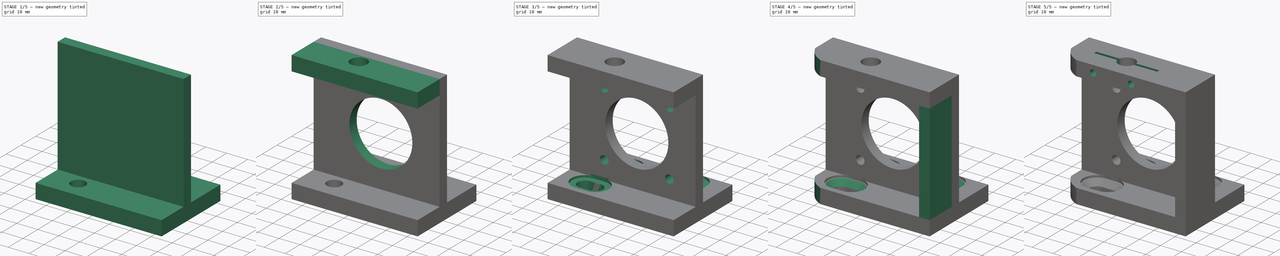
[diagram: build sequence overview — one tinted view per stage of 5, left to right]
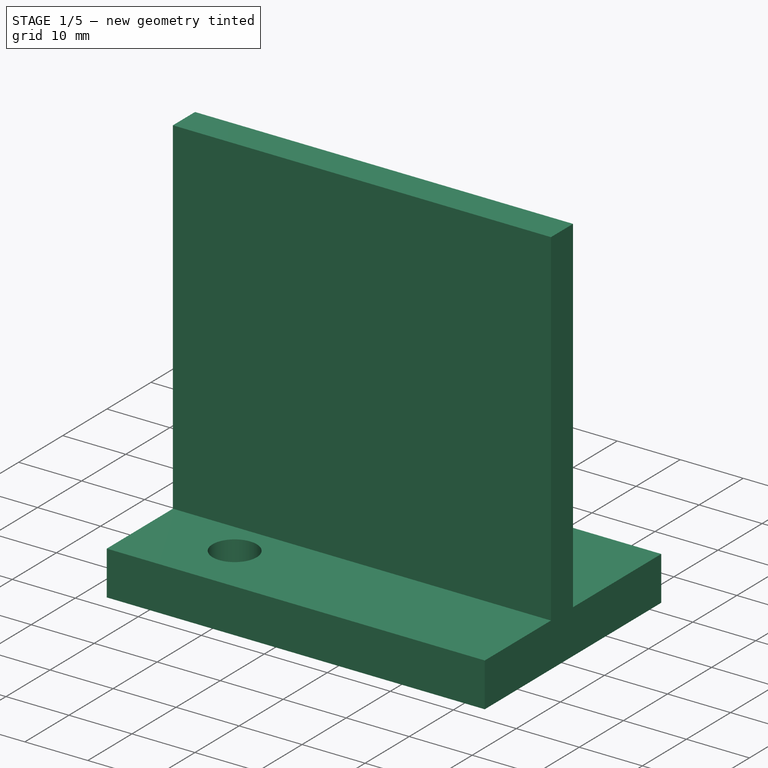
[diagram: stage 1 of 5 — iso view after this stage's code; geometry added in this stage tinted green]
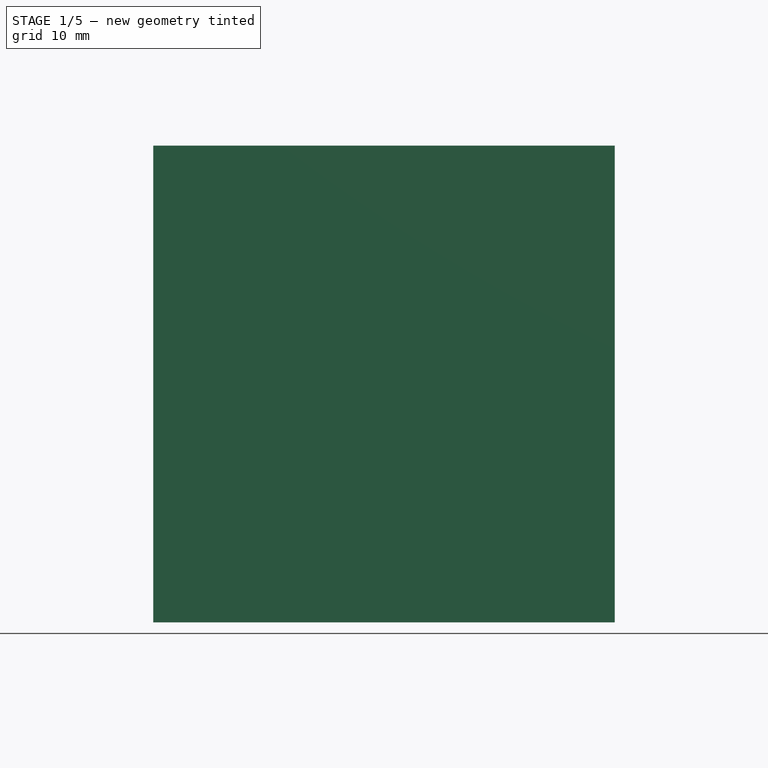
[diagram: stage 1 of 5 — front view after this stage's code; geometry added in this stage tinted green]
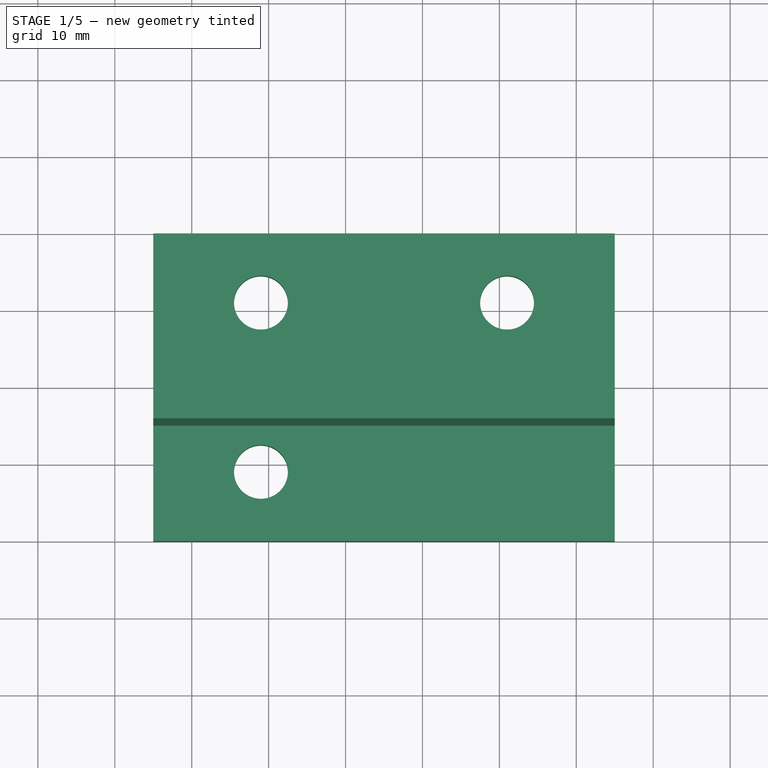
[diagram: stage 1 of 5 — top view after this stage's code; geometry added in this stage tinted green]
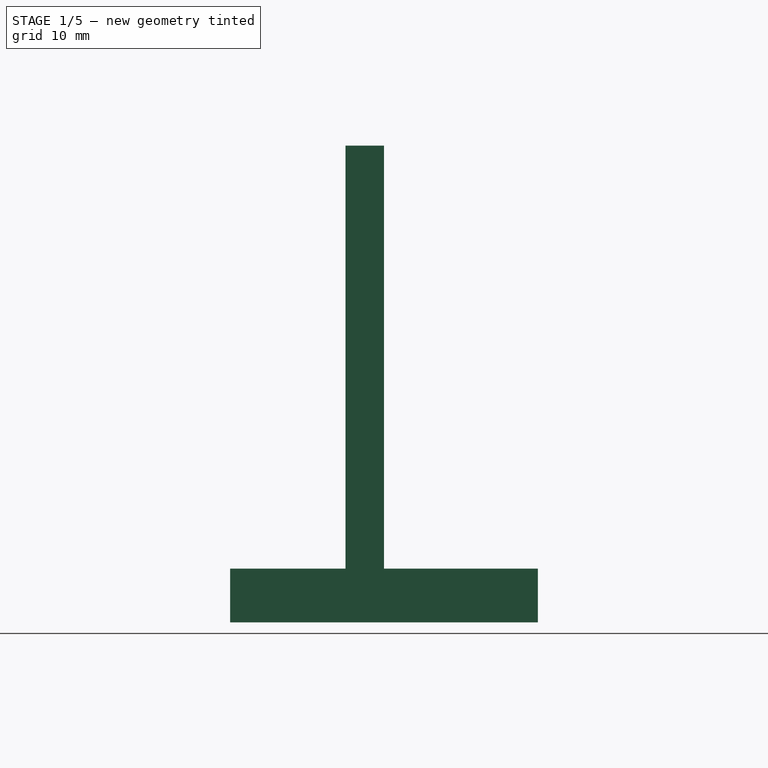
[diagram: stage 1 of 5 — right view after this stage's code; geometry added in this stage tinted green]
FCSTD DOCUMENT  (FreeCAD 0.17R10495 (Git))
Label: motor_a_2
License: All rights reserved
LicenseURL: http://en.wikipedia.org/wiki/All_rights_reserved
objects: Sketcher::SketchObject×14, PartDesign::Pocket×10, PartDesign::Pad×4, PartDesign::Chamfer×1, PartDesign::Body×1
note: 44 computed .brp shape members not serialized (recipe doc carries the construction recipe); baked Part::Feature solids carry a one-line shape summary decoded from their .brp

FEATURE [Sketcher::SketchObject] Sketch
  MapMode = 5
  Support = -> [XY_Plane]
  sketch-geometry (4):
    g0: LineSegment StartX=-25 StartY=20 StartZ=0 EndX=35 EndY=20 EndZ=0
    g1: LineSegment StartX=35 StartY=20 StartZ=0 EndX=35 EndY=-20 EndZ=0
    g2: LineSegment StartX=35 StartY=-20 StartZ=0 EndX=-25 EndY=-20 EndZ=0
    g3: LineSegment StartX=-25 StartY=20 StartZ=0 EndX=-25 EndY=-20 EndZ=0
  constraints (12):
    c: Coincident(g0,g1)
    c: Coincident(g1,g2)
    c: Horizontal(g0)
    c: Horizontal(g2)
    c: Vertical(g1)
    c: DistanceY(g1,g1) = 40
    c: DistanceX(g0,g0) = 60
    c: Coincident(g3,g0)
    c: Coincident(g3,g2)
    c: Vertical(g3)
    c: Symmetric(g2,g0,g-1)
    c: DistanceX(g0,g-1) = 25
FEATURE [PartDesign::Pad] Pad
  Length = 7
  Length2 = 100
  Profile = -> Sketch
  Type = 0
FEATURE [Sketcher::SketchObject] Sketch001
  MapMode = 5
  Support = -> [XY_Plane]
  sketch-geometry (3):
    g0: Circle CenterX=-11 CenterY=11 CenterZ=0 NormalX=0 NormalY=0 NormalZ=1 Radius=3.5
    g1: Circle CenterX=-11 CenterY=-11 CenterZ=0 NormalX=0 NormalY=0 NormalZ=1 Radius=3.5
    g2: Circle CenterX=21 CenterY=11 CenterZ=0 NormalX=0 NormalY=0 NormalZ=1 Radius=3.5
  constraints (7):
    c: Radius(g2) = 3.5
    c: Equal(g2,g0)
    c: Equal(g2,g1)
    c: Symmetric(g0,g1,g-1)
    c: DistanceX(g0,g-1) = 11
    c: DistanceY(g1,g-1) = 11
    c: DistanceX(g-1,g2) = 21
FEATURE [PartDesign::Pocket] Pocket
  BaseFeature = -> Pad
  Length = 5
  Midplane = true
  Profile = -> Sketch001
  Type = 1
FEATURE [Sketcher::SketchObject] Sketch002
  ExternalGeometry = -> [Pocket]
  MapMode = 5
  Placement = pos=(0,0,7) rot=(0,0,1;0rad)
  Support = -> [Pocket]
  sketch-geometry (4):
    g0: LineSegment StartX=-25 StartY=0 StartZ=0 EndX=35 EndY=0 EndZ=0
    g1: LineSegment StartX=35 StartY=0 StartZ=0 EndX=35 EndY=-5 EndZ=0
    g2: LineSegment StartX=35 StartY=-5 StartZ=0 EndX=-25 EndY=-5 EndZ=0
    g3: LineSegment StartX=-25 StartY=-5 StartZ=0 EndX=-25 EndY=0 EndZ=0
  constraints (12):
    c: Coincident(g0,g1)
    c: Coincident(g1,g2)
    c: Coincident(g2,g3)
    c: Coincident(g3,g0)
    c: Horizontal(g0)
    c: Horizontal(g2)
    c: Vertical(g1)
    c: Vertical(g3)
    c: Distance(g-3,g0) = 11
    c: PointOnObject(g0,g-4)
    c: PointOnObject(g0,g-5)
    c: DistanceY(g2,g0) = 5
FEATURE [PartDesign::Pad] Pad001
  BaseFeature = -> Pocket
  Length = 55
  Length2 = 100
  Profile = -> Sketch002
  Type = 0
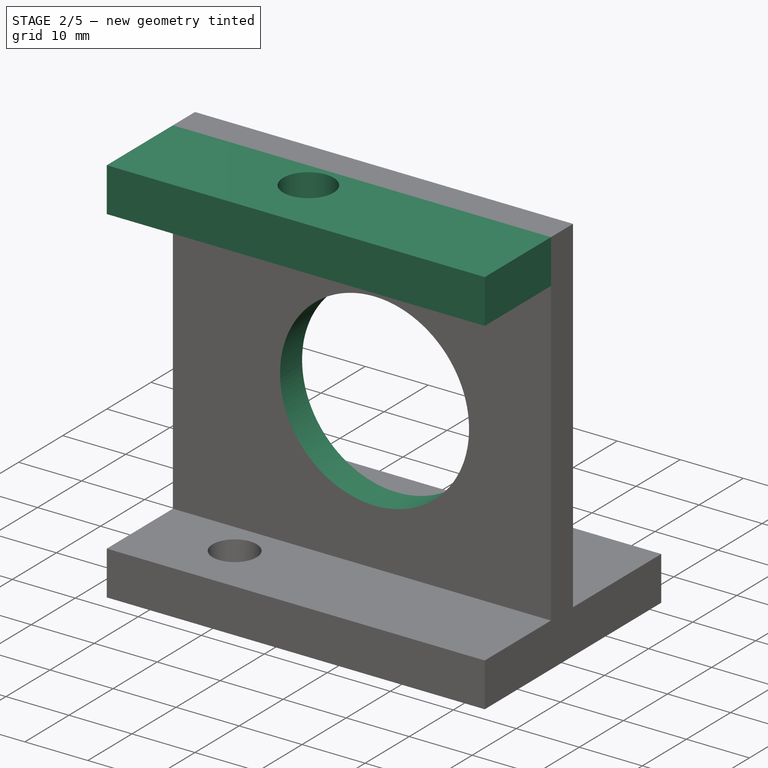
[diagram: stage 2 of 5 — iso view after this stage's code; geometry added in this stage tinted green]
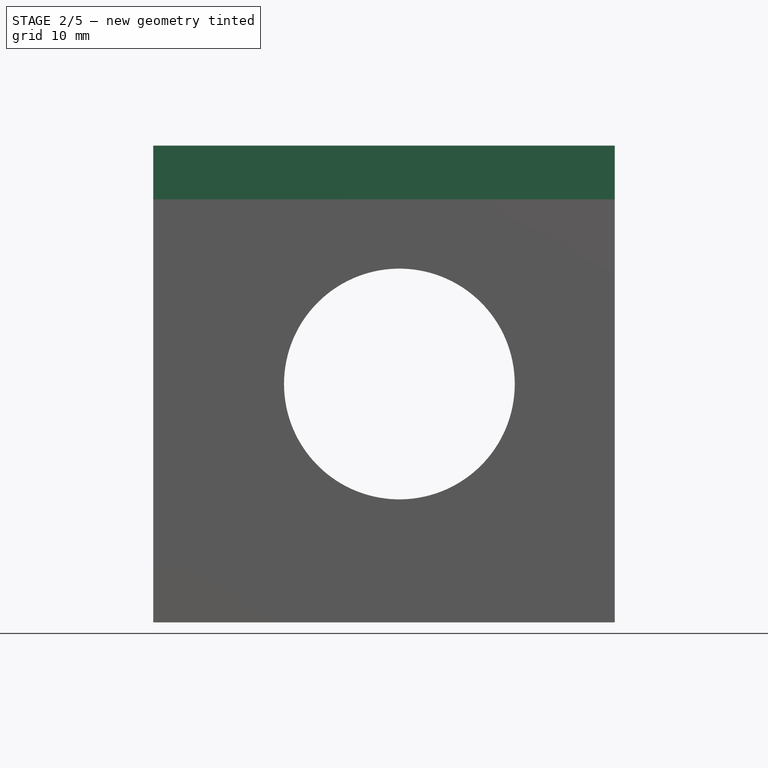
[diagram: stage 2 of 5 — front view after this stage's code; geometry added in this stage tinted green]
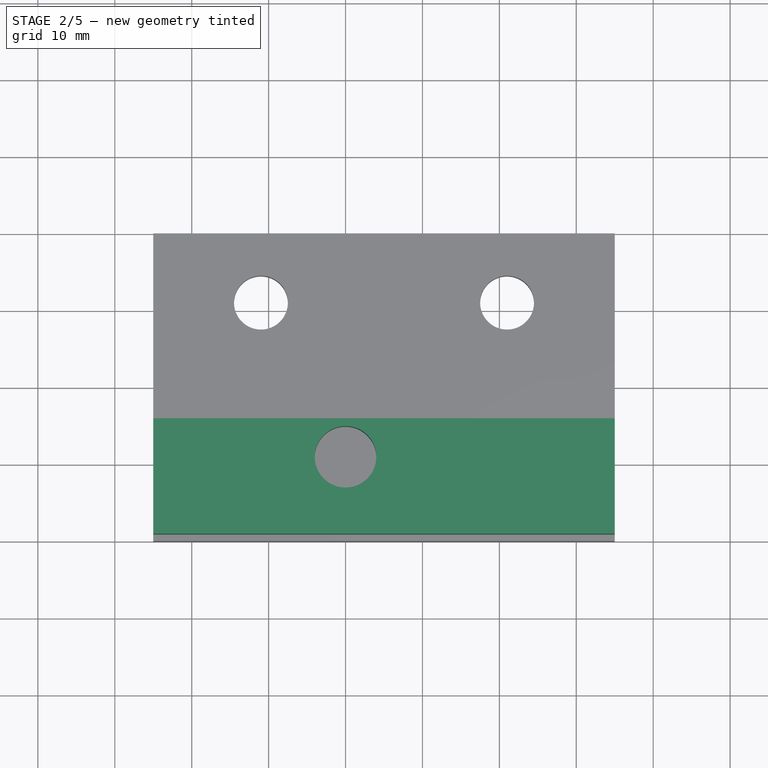
[diagram: stage 2 of 5 — top view after this stage's code; geometry added in this stage tinted green]
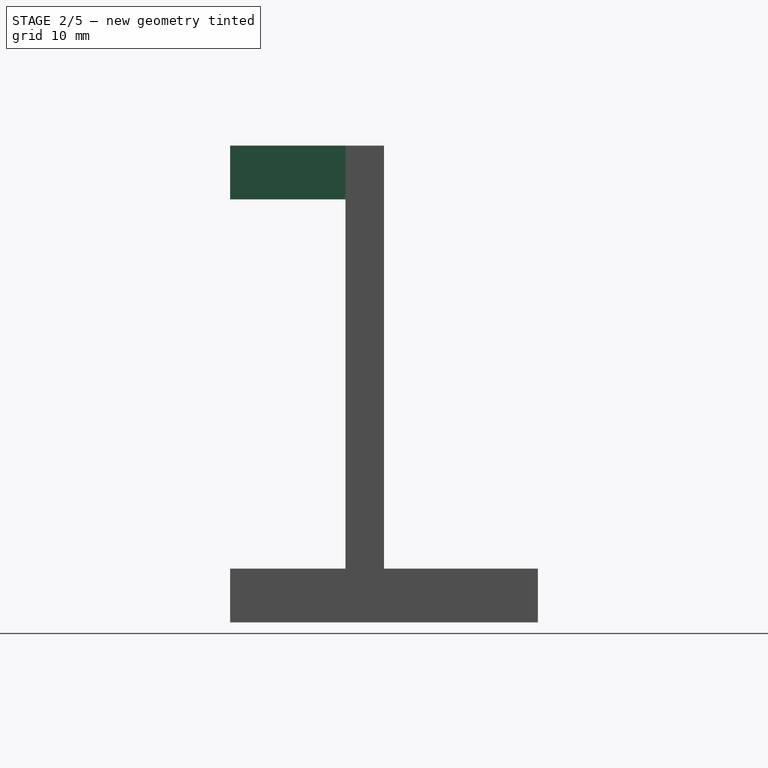
[diagram: stage 2 of 5 — right view after this stage's code; geometry added in this stage tinted green]
FEATURE [Sketcher::SketchObject] Sketch003
  ExternalGeometry = -> [Pad001]
  MapMode = 5
  Placement = pos=(0,-5,0) rot=(1,0,0;1.5708rad)
  Support = -> [Pad001]
  sketch-geometry (4):
    g0: LineSegment StartX=-25 StartY=62 StartZ=0 EndX=35 EndY=62 EndZ=0
    g1: LineSegment StartX=35 StartY=62 StartZ=0 EndX=35 EndY=55 EndZ=0
    g2: LineSegment StartX=35 StartY=55 StartZ=0 EndX=-25 EndY=55 EndZ=0
    g3: LineSegment StartX=-25 StartY=55 StartZ=0 EndX=-25 EndY=62 EndZ=0
  constraints (11):
    c: Coincident(g0,g1)
    c: Coincident(g1,g2)
    c: Coincident(g2,g3)
    c: Coincident(g3,g0)
    c: Horizontal(g0)
    c: Horizontal(g2)
    c: Vertical(g1)
    c: Vertical(g3)
    c: DistanceY(g3,g3) = 7
    c: Coincident(g0,g-3)
    c: Coincident(g0,g-3)
FEATURE [PartDesign::Pad] Pad002
  BaseFeature = -> Pad001
  Length = 15
  Length2 = 100
  Profile = -> Sketch003
  Type = 0
FEATURE [Sketcher::SketchObject] Sketch004
  ExternalGeometry = -> [Pad002]
  MapMode = 5
  Placement = pos=(0,0,62) rot=(0,0,1;0rad)
  Support = -> [Pad002]
  sketch-geometry (1):
    g0: Circle CenterX=0 CenterY=-10 CenterZ=0 NormalX=0 NormalY=0 NormalZ=1 Radius=4
  constraints (2):
    c: PointOnObject(g0,g-2)
    c: Radius(g0) = 4
FEATURE [PartDesign::Pocket] Pocket001
  BaseFeature = -> Pad002
  Length = 10
  Profile = -> Sketch004
  Type = 0
FEATURE [Sketcher::SketchObject] Sketch005
  ExternalGeometry = -> [Pocket001]
  MapMode = 5
  Placement = pos=(0,0,0) rot=(0,0.707107,0.707107;3.14159rad)
  Support = -> [Pocket001]
  sketch-geometry (1):
    g0: Circle CenterX=-7 CenterY=31 CenterZ=0 NormalX=0 NormalY=0 NormalZ=1 Radius=15
  constraints (3):
    c: Radius(g0) = 15
    c: DistanceX(g0,g-1) = 7
    c: DistanceY(g-3,g0) = 24
FEATURE [PartDesign::Pocket] Pocket002
  BaseFeature = -> Pocket001
  Length = 10
  Profile = -> Sketch005
  Type = 0
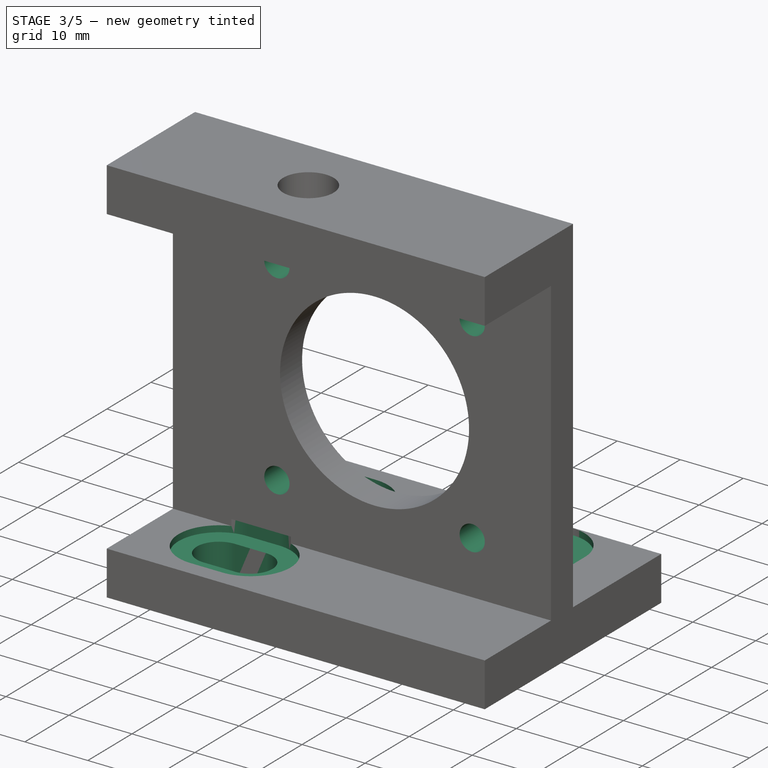
[diagram: stage 3 of 5 — iso view after this stage's code; geometry added in this stage tinted green]
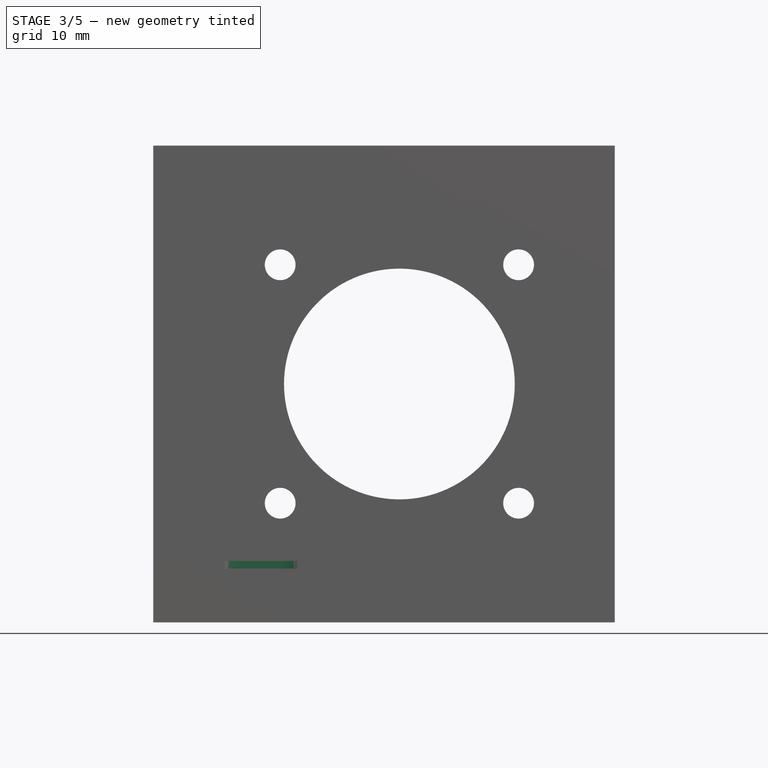
[diagram: stage 3 of 5 — front view after this stage's code; geometry added in this stage tinted green]
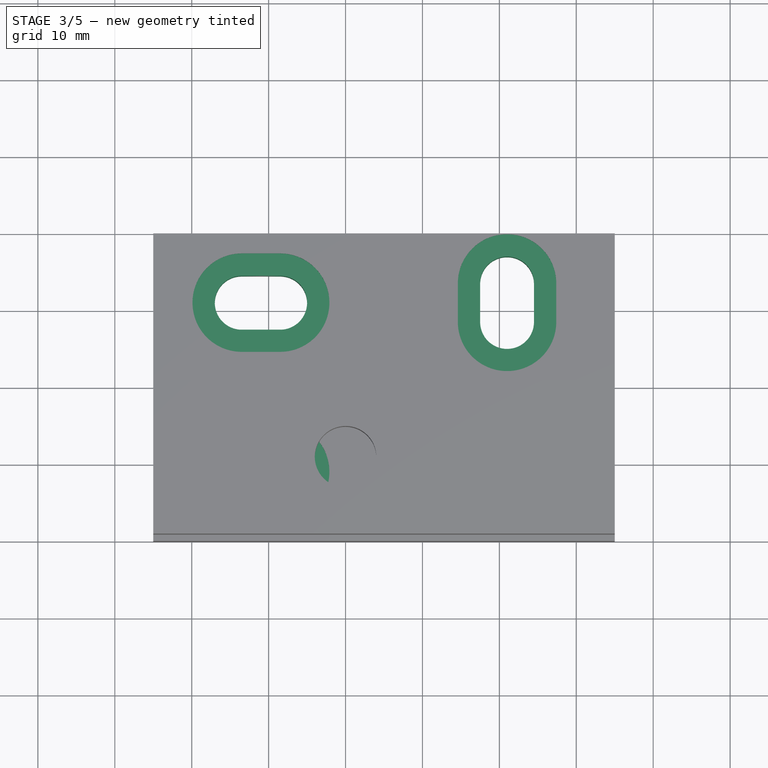
[diagram: stage 3 of 5 — top view after this stage's code; geometry added in this stage tinted green]
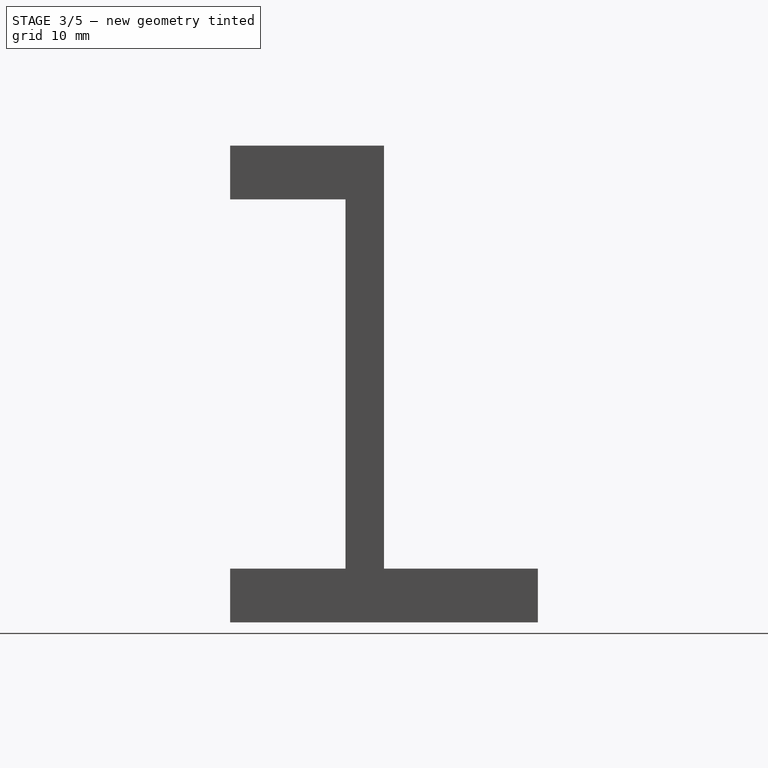
[diagram: stage 3 of 5 — right view after this stage's code; geometry added in this stage tinted green]
FEATURE [Sketcher::SketchObject] Sketch006
  ExternalGeometry = -> [Pocket002]
  MapMode = 5
  Placement = pos=(0,0,0) rot=(0,0.707107,0.707107;3.14159rad)
  Support = -> [Pocket002]
  sketch-geometry (4):
    g0: Circle CenterX=-22.5 CenterY=46.5 CenterZ=0 NormalX=0 NormalY=0 NormalZ=1 Radius=2
    g1: Circle CenterX=8.5 CenterY=46.5 CenterZ=0 NormalX=0 NormalY=0 NormalZ=1 Radius=2
    g2: Circle CenterX=-22.5 CenterY=15.5 CenterZ=0 NormalX=0 NormalY=0 NormalZ=1 Radius=2
    g3: Circle CenterX=8.5 CenterY=15.5 CenterZ=0 NormalX=0 NormalY=0 NormalZ=1 Radius=2
  constraints (12):
    c: DistanceY(g2,g0) = 31
    c: DistanceX(g0,g1) = 31
    c: DistanceY(g1,g0) = 0
    c: DistanceX(g0,g2) = 0
    c: Radius(g0) = 2
    c: Equal(g0,g2)
    c: Equal(g0,g1)
    c: DistanceX(g0,g-3) = 15.5
    c: DistanceY(g-3,g0) = 15.5
    c: DistanceX(g1,g3) = 0
    c: DistanceY(g3,g2) = 0
    c: Radius(g3) = 2
FEATURE [PartDesign::Pocket] Pocket003
  BaseFeature = -> Pocket002
  Length = 5
  Profile = -> Sketch006
  Type = 1
FEATURE [Sketcher::SketchObject] Sketch007
  ExternalGeometry = -> [Pocket003]
  MapMode = 5
  Placement = pos=(0,0,7) rot=(0,0,1;0rad)
  Support = -> [Pocket003]
  sketch-geometry (12):
    g0: ArcOfCircle CenterX=-13.5 CenterY=11 CenterZ=0 NormalX=0 NormalY=0 NormalZ=1 Radius=3.5 StartAngle=1.5708 EndAngle=4.71239
    g1: ArcOfCircle CenterX=-8.5 CenterY=11 CenterZ=0 NormalX=0 NormalY=0 NormalZ=1 Radius=3.5 StartAngle=4.71239 EndAngle=7.85398
    g2: LineSegment StartX=-13.5 StartY=7.5 StartZ=0 EndX=-8.5 EndY=7.5 EndZ=0
    g3: LineSegment StartX=-13.5 StartY=14.5 StartZ=0 EndX=-8.5 EndY=14.5 EndZ=0
    g4: ArcOfCircle CenterX=-13.5 CenterY=-11 CenterZ=0 NormalX=0 NormalY=0 NormalZ=1 Radius=3.5 StartAngle=1.5708 EndAngle=4.71239
    g5: ArcOfCircle CenterX=-8.5 CenterY=-11 CenterZ=0 NormalX=0 NormalY=0 NormalZ=1 Radius=3.5 StartAngle=4.71239 EndAngle=7.85398
    g6: LineSegment StartX=-13.5 StartY=-14.5 StartZ=0 EndX=-8.5 EndY=-14.5 EndZ=0
    g7: LineSegment StartX=-13.5 StartY=-7.5 StartZ=0 EndX=-8.5 EndY=-7.5 EndZ=0
    g8: ArcOfCircle CenterX=21 CenterY=13.5 CenterZ=0 NormalX=0 NormalY=0 NormalZ=1 Radius=3.5 StartAngle=0 EndAngle=3.14159
    g9: ArcOfCircle CenterX=21 CenterY=8.5 CenterZ=0 NormalX=0 NormalY=0 NormalZ=1 Radius=3.5 StartAngle=3.14159 EndAngle=6.28319
    g10: LineSegment StartX=17.5 StartY=13.5 StartZ=0 EndX=17.5 EndY=8.5 EndZ=0
    g11: LineSegment StartX=24.5 StartY=13.5 StartZ=0 EndX=24.5 EndY=8.5 EndZ=0
  constraints (28):
    c: Tangent(g0,g3) = 1.5708
    c: Tangent(g0,g2) = -1.5708
    c: Tangent(g2,g1) = -1.5708
    c: Tangent(g3,g1) = 1.5708
    c: Horizontal(g2)
    c: Equal(g0,g1)
    c: Tangent(g4,g7) = 1.5708
    c: Tangent(g4,g6) = -1.5708
    c: Tangent(g6,g5) = -1.5708
    c: Tangent(g7,g5) = 1.5708
    c: Horizontal(g6)
    c: Equal(g4,g5)
    c: Tangent(g8,g11) = 1.5708
    c: Tangent(g8,g10) = -1.5708
    c: Tangent(g10,g9) = -1.5708
    c: Tangent(g11,g9) = 1.5708
    c: Vertical(g10)
    c: Equal(g8,g9)
    c: Symmetric(g4,g5,g-5)
    c: Symmetric(g0,g1,g-3)
    c: Symmetric(g8,g9,g-4)
    c: Radius(g8) = 3.5
    c: Radius(g-4) = 3.5
    c: Equal(g8,g1)
    c: Equal(g8,g5)
    c: DistanceX(g7,g7) = 5
    c: DistanceX(g3,g3) = 5
    c: DistanceY(g11,g11) = 5
FEATURE [PartDesign::Pocket] Pocket004
  BaseFeature = -> Pocket003
  Length = 15
  Profile = -> Sketch007
  Type = 0
FEATURE [Sketcher::SketchObject] Sketch008
  ExternalGeometry = -> [Pocket004]
  MapMode = 5
  Placement = pos=(0,0,7) rot=(0,0,1;0rad)
  Support = -> [Pocket004]
  sketch-geometry (12):
    g0: ArcOfCircle CenterX=21 CenterY=13.5 CenterZ=0 NormalX=0 NormalY=0 NormalZ=1 Radius=6.4 StartAngle=0 EndAngle=3.14159
    g1: ArcOfCircle CenterX=21 CenterY=8.5 CenterZ=0 NormalX=0 NormalY=0 NormalZ=1 Radius=6.4 StartAngle=3.14159 EndAngle=6.28319
    g2: LineSegment StartX=14.6 StartY=13.5 StartZ=0 EndX=14.6 EndY=8.5 EndZ=0
    g3: LineSegment StartX=27.4 StartY=13.5 StartZ=0 EndX=27.4 EndY=8.5 EndZ=0
    g4: ArcOfCircle CenterX=-13.5 CenterY=11 CenterZ=0 NormalX=0 NormalY=0 NormalZ=1 Radius=6.4 StartAngle=1.5708 EndAngle=4.71239
    g5: ArcOfCircle CenterX=-8.5 CenterY=11 CenterZ=0 NormalX=0 NormalY=0 NormalZ=1 Radius=6.4 StartAngle=4.71239 EndAngle=7.85398
    g6: LineSegment StartX=-13.5 StartY=4.6 StartZ=0 EndX=-8.5 EndY=4.6 EndZ=0
    g7: LineSegment StartX=-13.5 StartY=17.4 StartZ=0 EndX=-8.5 EndY=17.4 EndZ=0
    g8: ArcOfCircle CenterX=-13.5 CenterY=-11 CenterZ=0 NormalX=0 NormalY=0 NormalZ=1 Radius=6.4 StartAngle=1.5708 EndAngle=4.71239
    g9: ArcOfCircle CenterX=-8.5 CenterY=-11 CenterZ=0 NormalX=0 NormalY=0 NormalZ=1 Radius=6.4 StartAngle=4.71239 EndAngle=7.85398
    g10: LineSegment StartX=-13.5 StartY=-17.4 StartZ=0 EndX=-8.5 EndY=-17.4 EndZ=0
    g11: LineSegment StartX=-13.5 StartY=-4.6 StartZ=0 EndX=-8.5 EndY=-4.6 EndZ=0
  constraints (27):
    c: Tangent(g0,g3) = 1.5708
    c: Tangent(g0,g2) = -1.5708
    c: Tangent(g2,g1) = -1.5708
    c: Tangent(g3,g1) = 1.5708
    c: Vertical(g2)
    c: Equal(g0,g1)
    c: Tangent(g4,g7) = 1.5708
    c: Tangent(g4,g6) = -1.5708
    c: Tangent(g6,g5) = -1.5708
    c: Tangent(g7,g5) = 1.5708
    c: Horizontal(g6)
    c: Equal(g4,g5)
    c: Tangent(g8,g11) = 1.5708
    c: Tangent(g8,g10) = -1.5708
    c: Tangent(g10,g9) = -1.5708
    c: Tangent(g11,g9) = 1.5708
    c: Horizontal(g10)
    c: Equal(g8,g9)
    c: Coincident(g0,g-5)
    c: Coincident(g5,g-4)
    c: Radius(g4) = 6.4
    c: Coincident(g4,g-3)
    c: Radius(g9) = 6.4
    c: Coincident(g-7,g9)
    c: Coincident(g-8,g8)
    c: Radius(g0) = 6.4
    c: Coincident(g1,g-6)
FEATURE [PartDesign::Pocket] Pocket005
  BaseFeature = -> Pocket004
  Length = 2
  Midplane = true
  Profile = -> Sketch008
  Type = 0
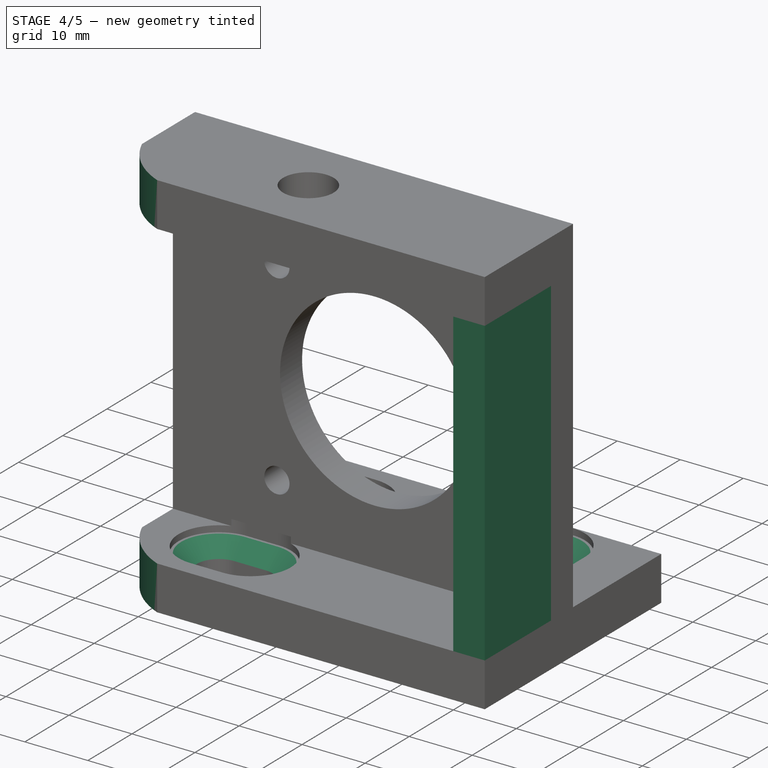
[diagram: stage 4 of 5 — iso view after this stage's code; geometry added in this stage tinted green]
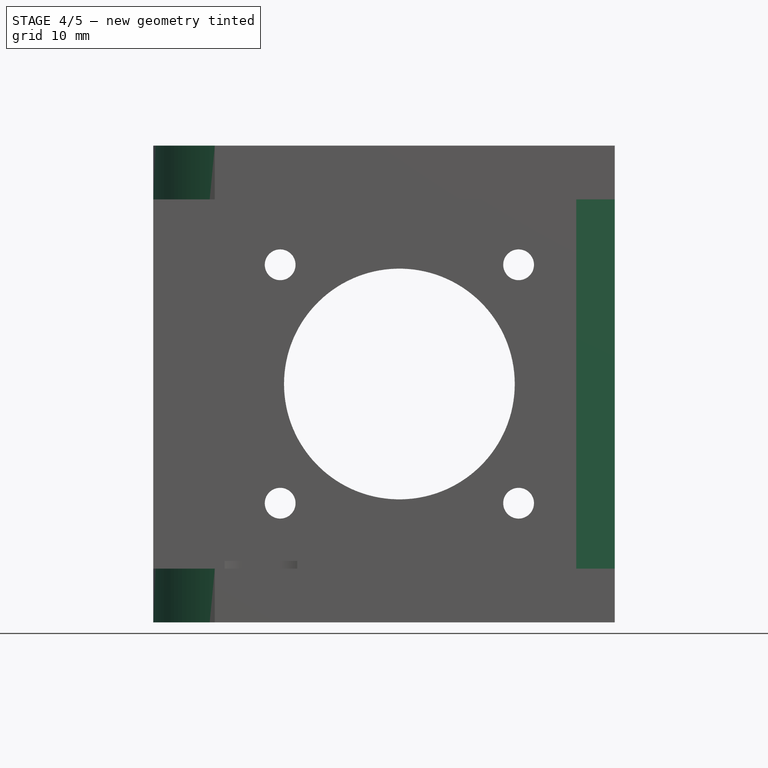
[diagram: stage 4 of 5 — front view after this stage's code; geometry added in this stage tinted green]
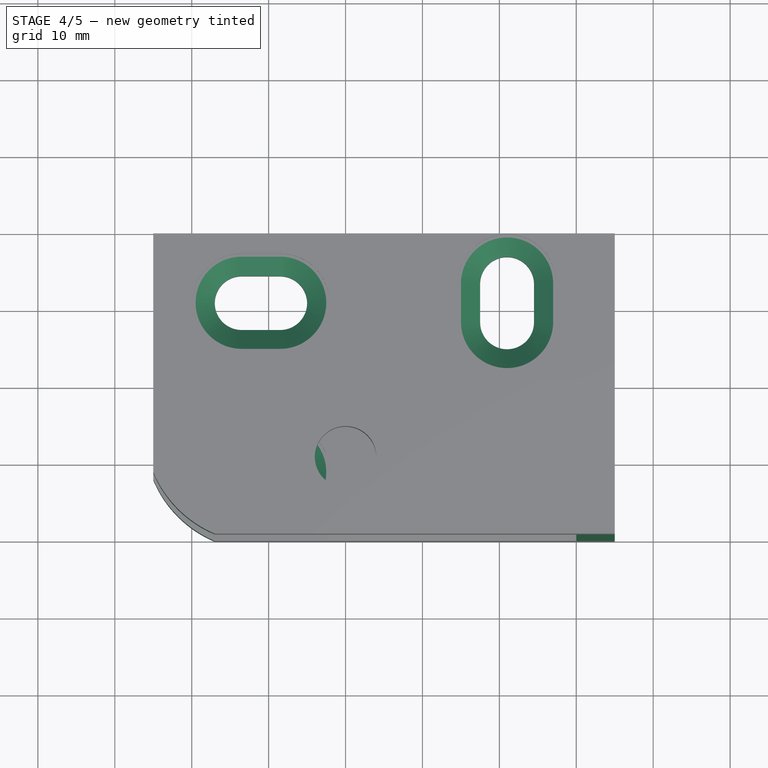
[diagram: stage 4 of 5 — top view after this stage's code; geometry added in this stage tinted green]
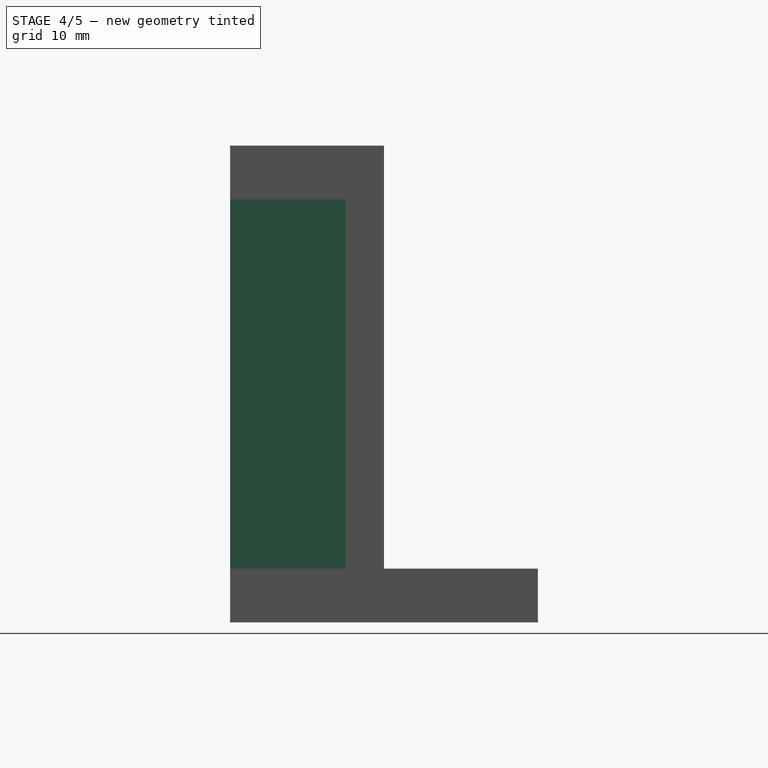
[diagram: stage 4 of 5 — right view after this stage's code; geometry added in this stage tinted green]
FEATURE [PartDesign::Chamfer] Chamfer
  Base = -> Pocket005 [Edge66,Edge84,Edge78]
  BaseFeature = -> Pocket005
  Size = 2.49
FEATURE [Sketcher::SketchObject] Sketch009
  ExternalGeometry = -> [Chamfer]
  MapMode = 5
  Placement = pos=(0,0,7) rot=(0,0,1;0rad)
  Support = -> [Chamfer]
  sketch-geometry (4):
    g0: LineSegment StartX=35 StartY=-5 StartZ=0 EndX=30 EndY=-5 EndZ=0
    g1: LineSegment StartX=30 StartY=-5 StartZ=0 EndX=30 EndY=-20 EndZ=0
    g2: LineSegment StartX=30 StartY=-20 StartZ=0 EndX=35 EndY=-20 EndZ=0
    g3: LineSegment StartX=35 StartY=-20 StartZ=0 EndX=35 EndY=-5 EndZ=0
  constraints (11):
    c: Coincident(g0,g1)
    c: Coincident(g1,g2)
    c: Coincident(g2,g3)
    c: Coincident(g3,g0)
    c: Horizontal(g0)
    c: Horizontal(g2)
    c: Vertical(g1)
    c: Vertical(g3)
    c: Coincident(g0,g-3)
    c: Coincident(g2,g-3)
    c: DistanceX(g2,g2) = 5
FEATURE [PartDesign::Pad] Pad003
  BaseFeature = -> Chamfer
  Length = 50
  Length2 = 100
  Profile = -> Sketch009
  Type = 3
  UpToFace = -> Chamfer [Face71]
FEATURE [Sketcher::SketchObject] Sketch010
  ExternalGeometry = -> [Pad003]
  MapMode = 5
  Placement = pos=(0,0,62) rot=(0,0,1;0rad)
  Support = -> [Pad003]
  sketch-geometry (3):
    g0: LineSegment StartX=-25 StartY=-20 StartZ=0 EndX=-25 EndY=-12 EndZ=0
    g1: LineSegment StartX=-25 StartY=-20 StartZ=0 EndX=-17 EndY=-20 EndZ=0
    g2: ArcOfCircle CenterX=-11.1766 CenterY=-6.17656 CenterZ=0 NormalX=0 NormalY=0 NormalZ=1 Radius=15 StartAngle=3.5403 EndAngle=4.31368
  constraints (9):
    c: Vertical(g0)
    c: Coincident(g1,g0)
    c: Horizontal(g1)
    c: Equal(g0,g1)
    c: Coincident(g0,g-3)
    c: DistanceX(g1,g1) = 8
    c: Coincident(g2,g0)
    c: Coincident(g1,g2)
    c: Radius(g2) = 15
FEATURE [PartDesign::Pocket] Pocket006
  BaseFeature = -> Pad003
  Length = 5
  Midplane = true
  Profile = -> Sketch010
  Type = 1
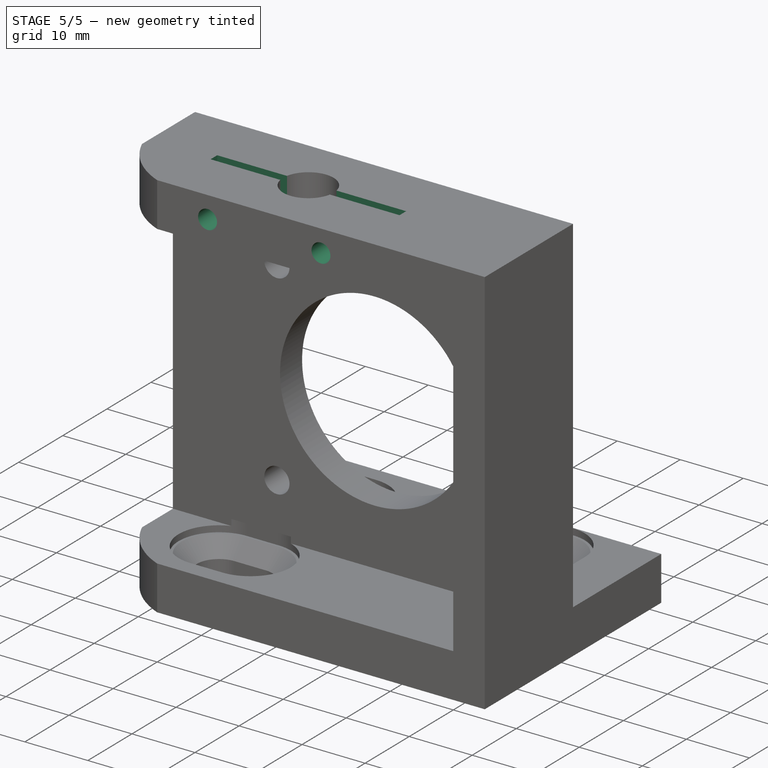
[diagram: stage 5 of 5 — iso view after this stage's code; geometry added in this stage tinted green]
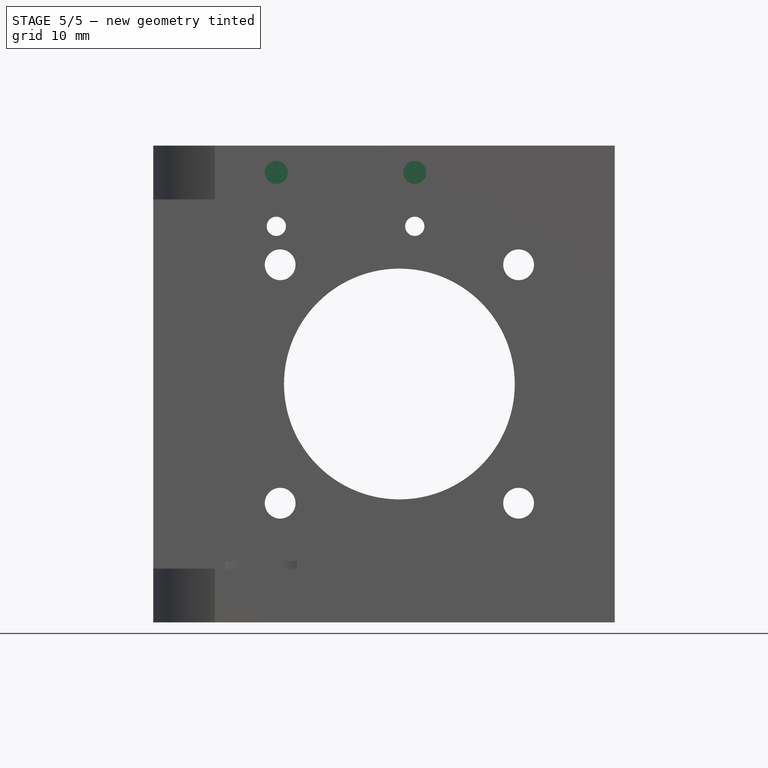
[diagram: stage 5 of 5 — front view after this stage's code; geometry added in this stage tinted green]
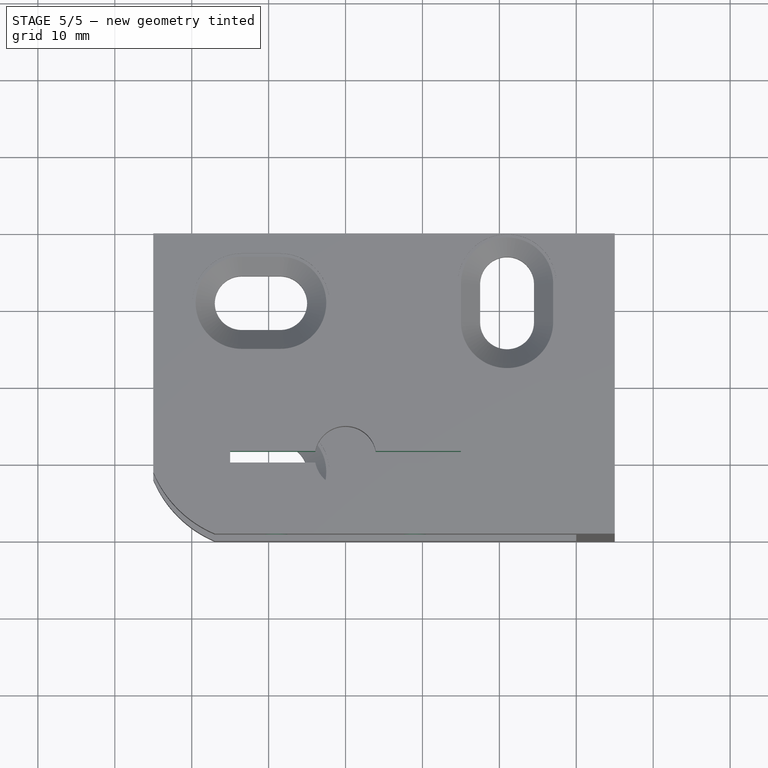
[diagram: stage 5 of 5 — top view after this stage's code; geometry added in this stage tinted green]
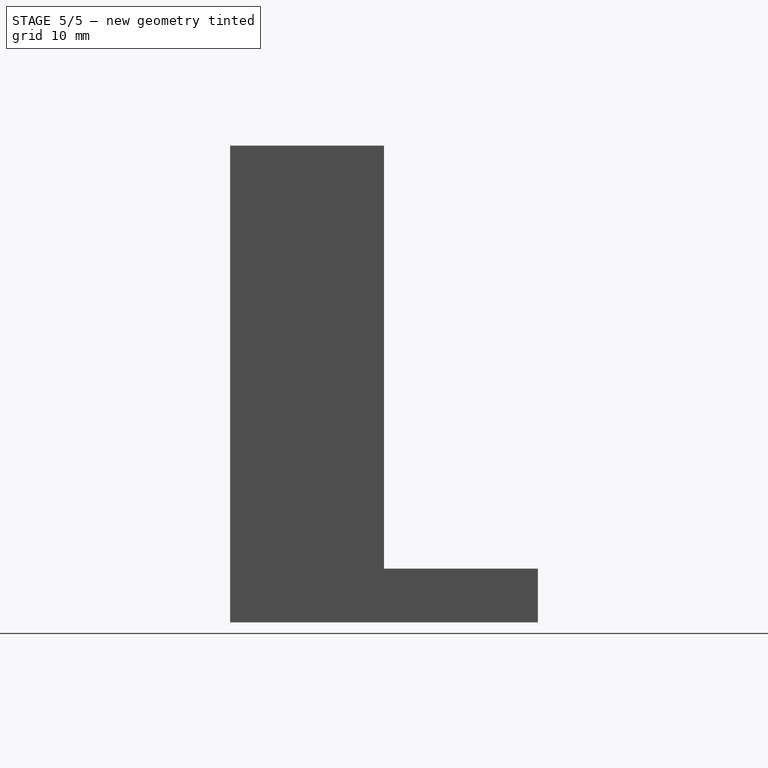
[diagram: stage 5 of 5 — right view after this stage's code; geometry added in this stage tinted green]
FEATURE [Sketcher::SketchObject] Sketch011
  ExternalGeometry = -> [Pocket006]
  MapMode = 5
  Placement = pos=(0,0,62) rot=(0,0,1;0rad)
  Support = -> [Pocket006]
  sketch-geometry (4):
    g0: LineSegment StartX=-15 StartY=-9.25 StartZ=0 EndX=15 EndY=-9.25 EndZ=0
    g1: LineSegment StartX=15 StartY=-9.25 StartZ=0 EndX=15 EndY=-10.75 EndZ=0
    g2: LineSegment StartX=15 StartY=-10.75 StartZ=0 EndX=-15 EndY=-10.75 EndZ=0
    g3: LineSegment StartX=-15 StartY=-10.75 StartZ=0 EndX=-15 EndY=-9.25 EndZ=0
  constraints (11):
    c: Coincident(g0,g1)
    c: Coincident(g1,g2)
    c: Coincident(g2,g3)
    c: Coincident(g3,g0)
    c: Horizontal(g0)
    c: Horizontal(g2)
    c: Vertical(g1)
    c: Vertical(g3)
    c: Symmetric(g0,g1,g-3)
    c: DistanceX(g0,g0) = 30
    c: DistanceY(g3,g3) = 1.5
FEATURE [PartDesign::Pocket] Pocket007
  BaseFeature = -> Pocket006
  Length = 10
  Profile = -> Sketch011
  Type = 0
FEATURE [Sketcher::SketchObject] Sketch013
  ExternalGeometry = -> [Pocket007]
  MapMode = 5
  Placement = pos=(0,-20,0) rot=(1,0,0;1.5708rad)
  Support = -> [Pocket007]
  sketch-geometry (2):
    g0: Circle CenterX=9 CenterY=51.5 CenterZ=0 NormalX=0 NormalY=0 NormalZ=1 Radius=1.25
    g1: Circle CenterX=-9 CenterY=51.5 CenterZ=0 NormalX=0 NormalY=0 NormalZ=1 Radius=1.25
  constraints (6):
    c: DistanceY(g1,g-3) = 3.5
    c: DistanceY(g1,g0) = 0
    c: Symmetric(g1,g0,g-2)
    c: DistanceX(g1,g0) = 18
    c: Radius(g0) = 1.25
    c: Equal(g0,g1)
FEATURE [PartDesign::Pocket] Pocket008
  BaseFeature = -> Pocket007
  Length = 5
  Profile = -> Sketch013
  Type = 1
FEATURE [Sketcher::SketchObject] Sketch014
  ExternalGeometry = -> [Pocket008]
  MapMode = 5
  Placement = pos=(0,-20,0) rot=(1,0,0;1.5708rad)
  Support = -> [Pocket008]
  sketch-geometry (2):
    g0: Circle CenterX=-9 CenterY=58.5 CenterZ=0 NormalX=0 NormalY=0 NormalZ=1 Radius=1.5
    g1: Circle CenterX=9 CenterY=58.5 CenterZ=0 NormalX=0 NormalY=0 NormalZ=1 Radius=1.5
  constraints (4):
    c: Coincident(g0,g-3)
    c: Coincident(g1,g-4)
    c: Radius(g0) = 1.5
    c: Equal(g0,g1)
FEATURE [PartDesign::Pocket] Pocket009
  BaseFeature = -> Pocket008
  Length = 9.5
  Profile = -> Sketch014
  Type = 0
FEATURE [PartDesign::Body] Body
  Group = -> [Sketch,Pad,Sketch001,Pocket,Sketch002,Pad001,Sketch003,Sketch009,Sketch010,Pad002,Sketch004,Pocket001,Sketch005,Pocket002,Sketch006,Pocket003,Sketch007,Pocket004,Pocket005,Chamfer,Sketch008,Pad003,Pocket006,Sketch011,Pocket007,Sketch013,Pocket008,Sketch014,Pocket009]
  Origin = -> BodyOrigin
  Tip = -> Pocket009
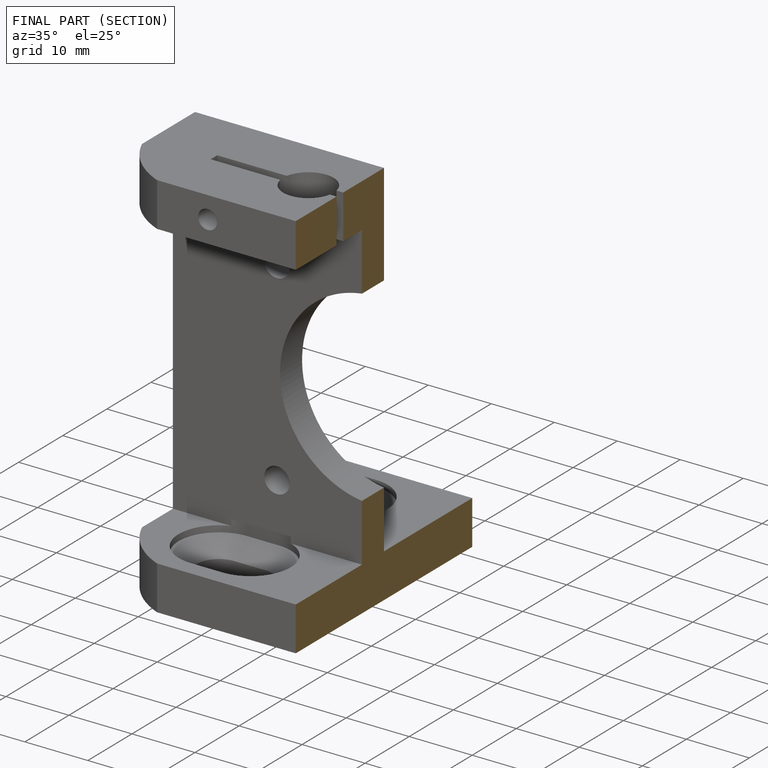
[diagram: finished part — half-section view (interior)]
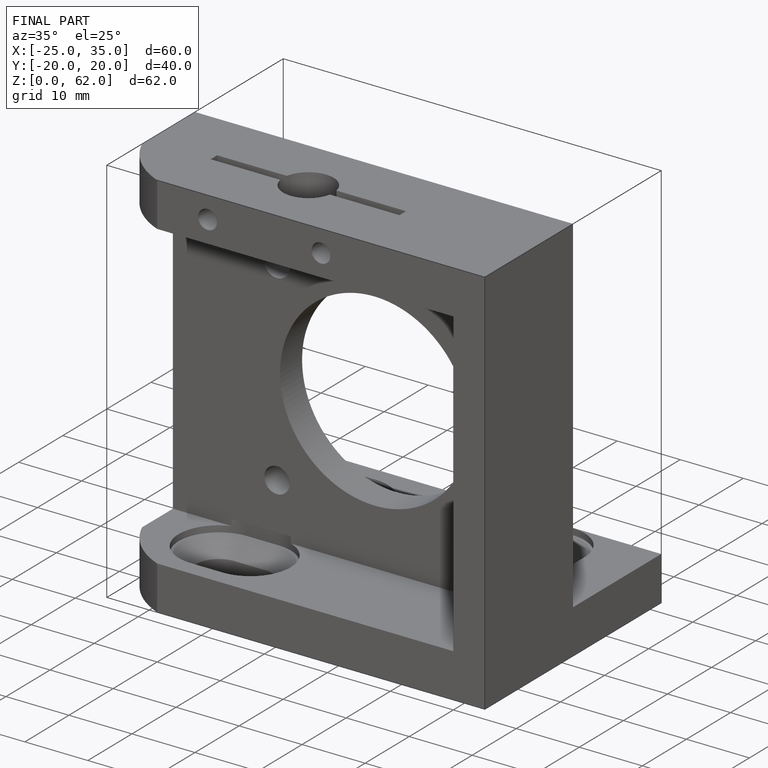
[diagram: finished part — iso view with bounding-box wireframe]
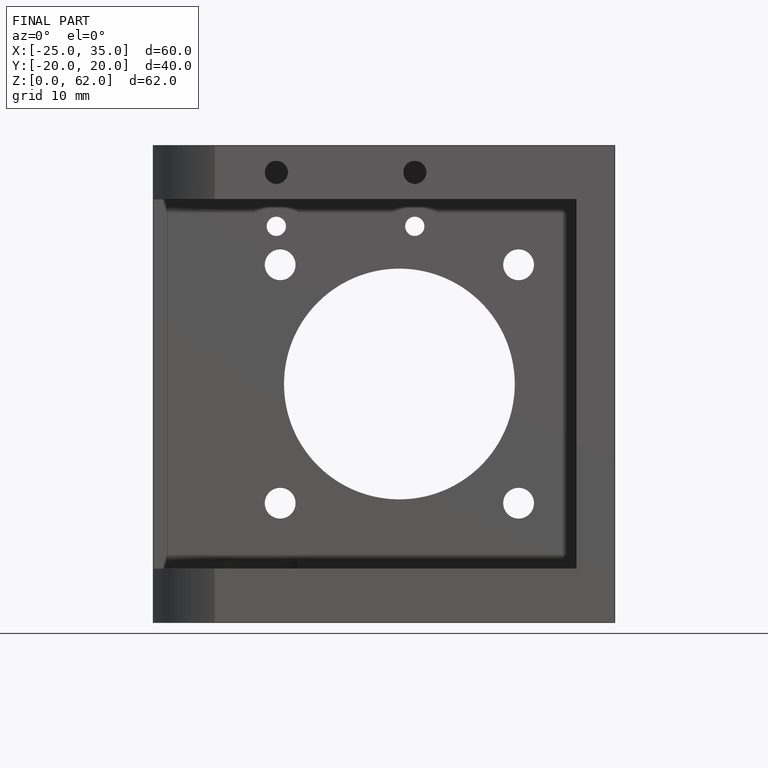
[diagram: finished part — front view with bounding-box wireframe]
